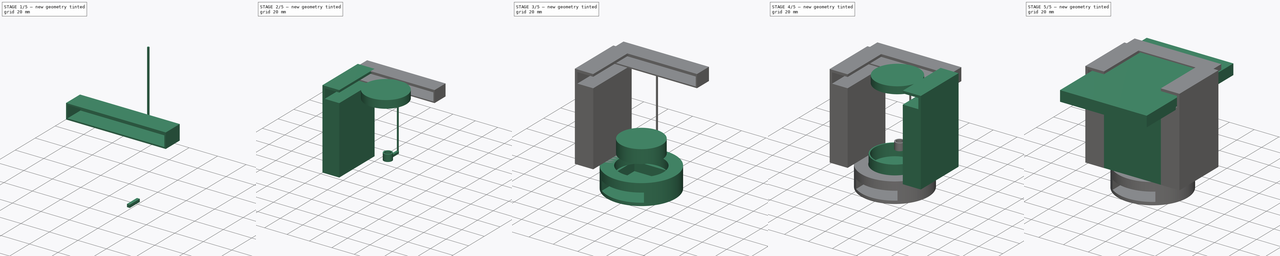
[diagram: build sequence overview — one tinted view per stage of 5, left to right]
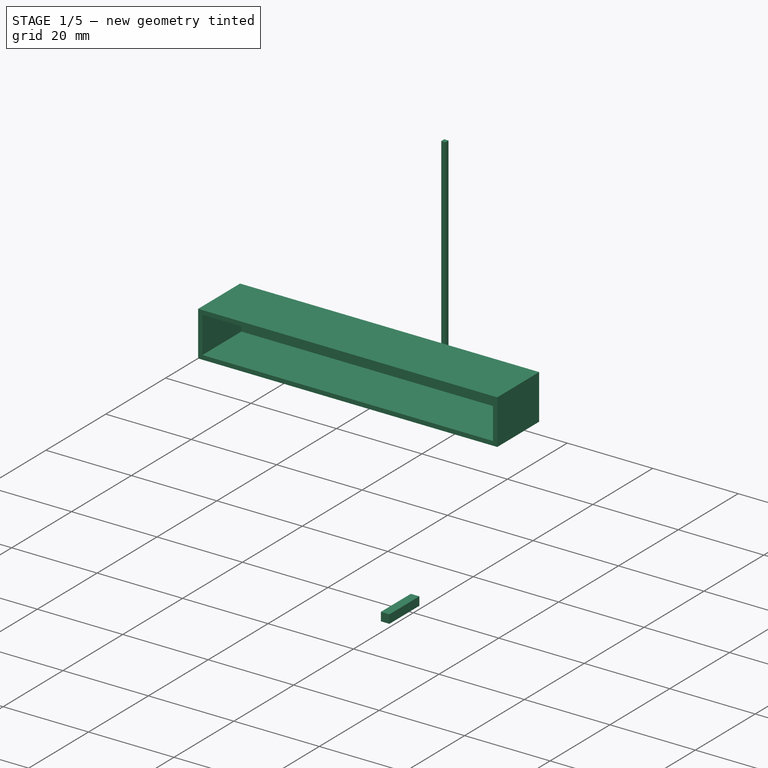
[diagram: stage 1 of 5 — iso view after this stage's code; geometry added in this stage tinted green]
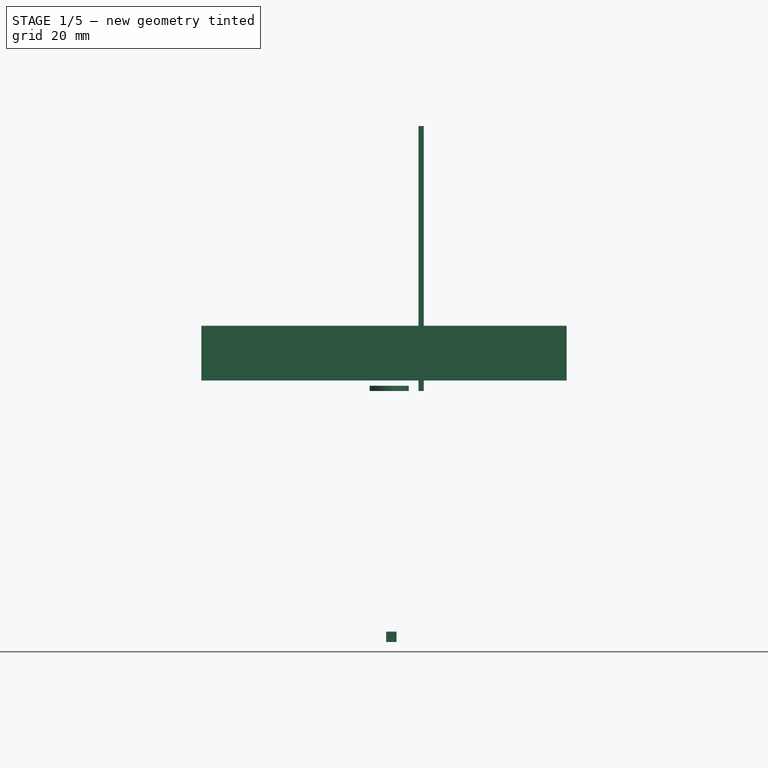
[diagram: stage 1 of 5 — front view after this stage's code; geometry added in this stage tinted green]
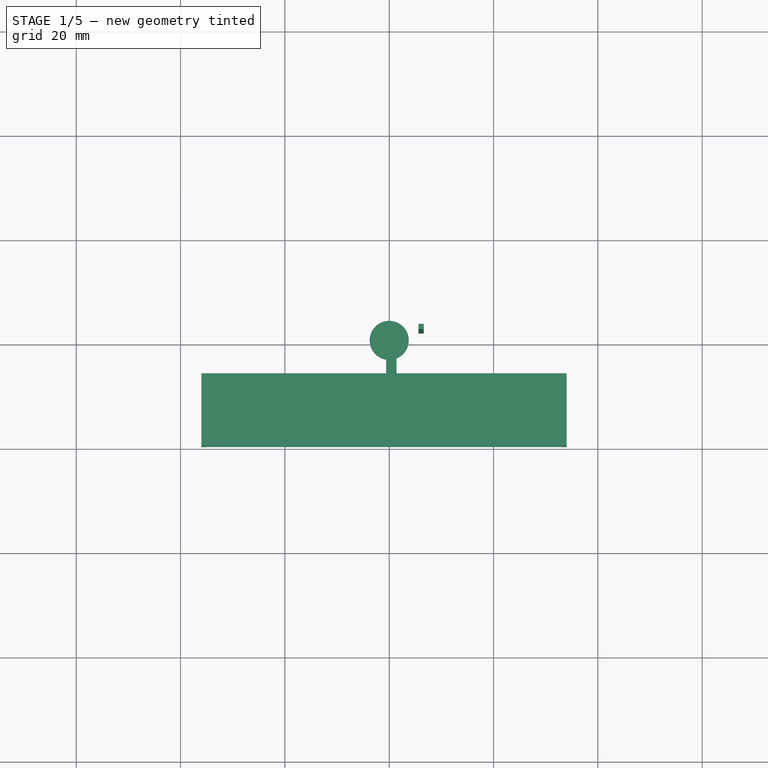
[diagram: stage 1 of 5 — top view after this stage's code; geometry added in this stage tinted green]
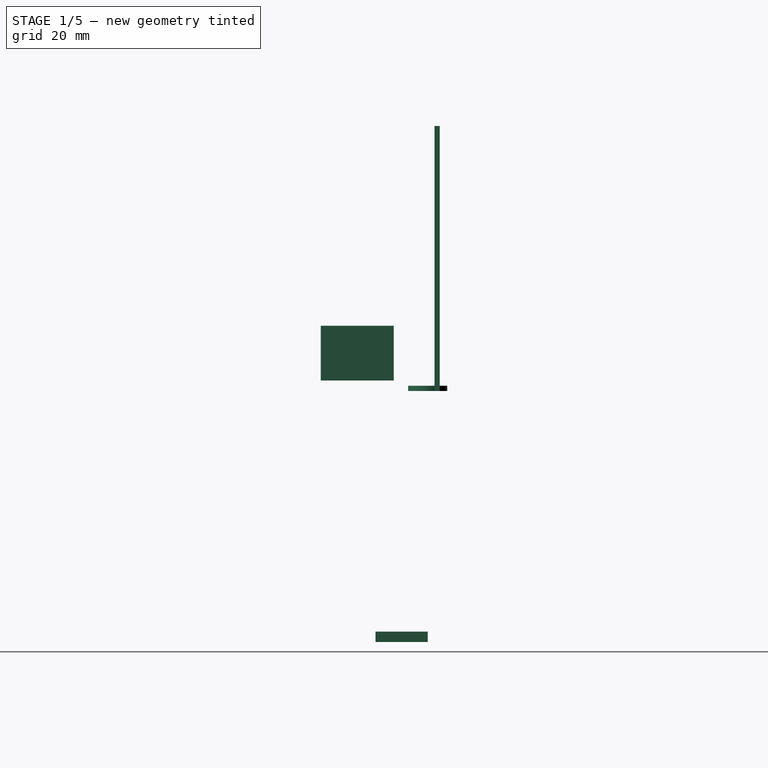
[diagram: stage 1 of 5 — right view after this stage's code; geometry added in this stage tinted green]
FCSTD DOCUMENT  (FreeCAD 0.20R29410 (Git))
Label: teg-visc3
License: All rights reserved
LicenseURL: http://en.wikipedia.org/wiki/All_rights_reserved
objects: Sketcher::SketchObject×21, PartDesign::Pad×21, PartDesign::Body×21, Part::Cut×7, Part::MultiFuse×1
note: 92 computed .brp shape members not serialized (recipe doc carries the construction recipe); baked Part::Feature solids carry a one-line shape summary decoded from their .brp

FEATURE [Sketcher::SketchObject] Sketch001
  FullyConstrained = false
  MapMode = 5
  Support = -> [XY_Plane001]
  sketch-geometry (4):
    g0: LineSegment StartX=-37 StartY=7 StartZ=0 EndX=33 EndY=7 EndZ=0
    g1: LineSegment StartX=33 StartY=7 StartZ=0 EndX=33 EndY=-7 EndZ=0
    g2: LineSegment StartX=33 StartY=-7 StartZ=0 EndX=-37 EndY=-7 EndZ=0
    g3: LineSegment StartX=-37 StartY=-7 StartZ=0 EndX=-37 EndY=7 EndZ=0
  constraints (12):
    c: Coincident(g0,g1)
    c: Coincident(g1,g2)
    c: Coincident(g2,g3)
    c: Coincident(g3,g0)
    c: Horizontal(g0)
    c: Horizontal(g2)
    c: Vertical(g1)
    c: Vertical(g3)
    c: DistanceX(g0,g0) = 70
    c: DistanceY(g1,g1) = 14
    c: DistanceX(g0,g-1) = 37
    c: DistanceY(g-1,g0) = 7
FEATURE [PartDesign::Pad] Pad001
  AllowMultiFace = false
  Direction = (1,1,1)
  Length = 10.5
  Length2 = 100
  Profile = -> Sketch001
  Type = 0
FEATURE [PartDesign::Body] Body029
  Group = -> [Sketch028,Pad026]
  Origin = -> Origin029
  Placement = pos=(-1,-21.5,2) rot=(0,0,1;0rad)
  Tip = -> Pad026
FEATURE [Sketcher::SketchObject] Sketch029
  FullyConstrained = false
  MapMode = 5
  Support = -> [XY_Plane030]
  sketch-geometry (4):
    g0: LineSegment StartX=-35 StartY=6 StartZ=0 EndX=33 EndY=6 EndZ=0
    g1: LineSegment StartX=33 StartY=6 StartZ=0 EndX=33 EndY=-7 EndZ=0
    g2: LineSegment StartX=33 StartY=-7 StartZ=0 EndX=-35 EndY=-7 EndZ=0
    g3: LineSegment StartX=-35 StartY=-7 StartZ=0 EndX=-35 EndY=6 EndZ=0
  constraints (12):
    c: Coincident(g0,g1)
    c: Coincident(g1,g2)
    c: Coincident(g2,g3)
    c: Coincident(g3,g0)
    c: Horizontal(g0)
    c: Horizontal(g2)
    c: Vertical(g1)
    c: Vertical(g3)
    c: DistanceX(g0,g0) = 68
    c: DistanceY(g1,g1) = 13
    c: DistanceX(g0,g-1) = 35
    c: DistanceY(g-1,g0) = 6
FEATURE [PartDesign::Pad] Pad027
  AllowMultiFace = false
  Direction = (1,1,1)
  Length = 8.5
  Length2 = 100
  Profile = -> Sketch029
  Type = 0
FEATURE [PartDesign::Body] Body035
  Group = -> [Sketch034,Pad032]
  Origin = -> Origin035
  Placement = pos=(-1,-30,-48.5) rot=(0,0,1;0rad)
  Tip = -> Pad032
FEATURE [Sketcher::SketchObject] Sketch035
  FullyConstrained = false
  MapMode = 5
  Support = -> [XY_Plane036]
  sketch-geometry (4):
    g0: LineSegment StartX=4.89394 StartY=2.58442 StartZ=0 EndX=6.89394 EndY=2.58442 EndZ=0
    g1: LineSegment StartX=6.89394 StartY=2.58442 StartZ=0 EndX=6.89394 EndY=0.584416 EndZ=0
    g2: LineSegment StartX=6.89394 StartY=0.584416 StartZ=0 EndX=4.89394 EndY=0.584416 EndZ=0
    g3: LineSegment StartX=4.89394 StartY=0.584416 StartZ=0 EndX=4.89394 EndY=2.58442 EndZ=0
  constraints (10):
    c: Coincident(g0,g1)
    c: Coincident(g1,g2)
    c: Coincident(g2,g3)
    c: Coincident(g3,g0)
    c: Horizontal(g0)
    c: Horizontal(g2)
    c: Vertical(g1)
    c: Vertical(g3)
    c: DistanceY(g1,g1) = 2
    c: DistanceX(g2,g2) = 2
FEATURE [PartDesign::Pad] Pad033
  AllowMultiFace = false
  Direction = (1,1,1)
  Length = 50.8
  Length2 = 100
  Profile = -> Sketch035
  Type = 0
FEATURE [PartDesign::Body] Body036
  Group = -> [Sketch035,Pad033]
  Origin = -> Origin036
  Placement = pos=(-7.2,-19,-49) rot=(0,0,1;0rad)
  Tip = -> Pad033
FEATURE [Sketcher::SketchObject] Sketch036
  FullyConstrained = false
  MapMode = 5
  Placement = pos=(0,0,0) rot=(1,0,0;1.5708rad)
  Support = -> [XZ_Plane037]
  sketch-geometry (4):
    g0: LineSegment StartX=-0.595553 StartY=-46.1395 StartZ=0 EndX=1.40445 EndY=-46.1395 EndZ=0
    g1: LineSegment StartX=1.40445 StartY=-46.1395 StartZ=0 EndX=1.40445 EndY=-48.1395 EndZ=0
    g2: LineSegment StartX=1.40445 StartY=-48.1395 StartZ=0 EndX=-0.595553 EndY=-48.1395 EndZ=0
    g3: LineSegment StartX=-0.595553 StartY=-48.1395 StartZ=0 EndX=-0.595553 EndY=-46.1395 EndZ=0
  constraints (10):
    c: Coincident(g0,g1)
    c: Coincident(g1,g2)
    c: Coincident(g2,g3)
    c: Coincident(g3,g0)
    c: Horizontal(g0)
    c: Horizontal(g2)
    c: Vertical(g1)
    c: Vertical(g3)
    c: DistanceY(g1,g1) = 2
    c: DistanceX(g0,g0) = 2
FEATURE [PartDesign::Pad] Pad034
  AllowMultiFace = false
  Direction = (0,-1,-2e-16)
  Length = 10
  Length2 = 100
  Placement = pos=(0,0,0) rot=(1,0,0;1.5708rad)
  Profile = -> Sketch036
  Type = 0
FEATURE [PartDesign::Body] Body037
  Group = -> [Sketch036,Pad034]
  Origin = -> Origin037
  Placement = pos=(-1.5,-17.2,-1) rot=(0,0,1;0rad)
  Tip = -> Pad034
FEATURE [Sketcher::SketchObject] Sketch037
  FullyConstrained = false
  MapMode = 5
  Support = -> [XY_Plane038]
  sketch-geometry (1):
    g0: Circle CenterX=0 CenterY=0 CenterZ=0 NormalX=0 NormalY=0 NormalZ=1 AngleXU=0 Radius=3.75
  constraints (1):
    c: Radius(g0) = 3.75
FEATURE [PartDesign::Pad] Pad035
  AllowMultiFace = false
  Direction = (1,1,1)
  Length = 1
  Length2 = 100
  Profile = -> Sketch037
  Type = 0
FEATURE [PartDesign::Body] Body038
  Group = -> [Sketch037,Pad035]
  Origin = -> Origin038
  Placement = pos=(-1,-30,-49.5) rot=(0,0,1;0rad)
  Tip = -> Pad035
FEATURE [Part::Cut] Cut036
  Base = -> Body001
  Placement = pos=(0,-5,1) rot=(0,0,1;0rad)
  Tool = -> Body030
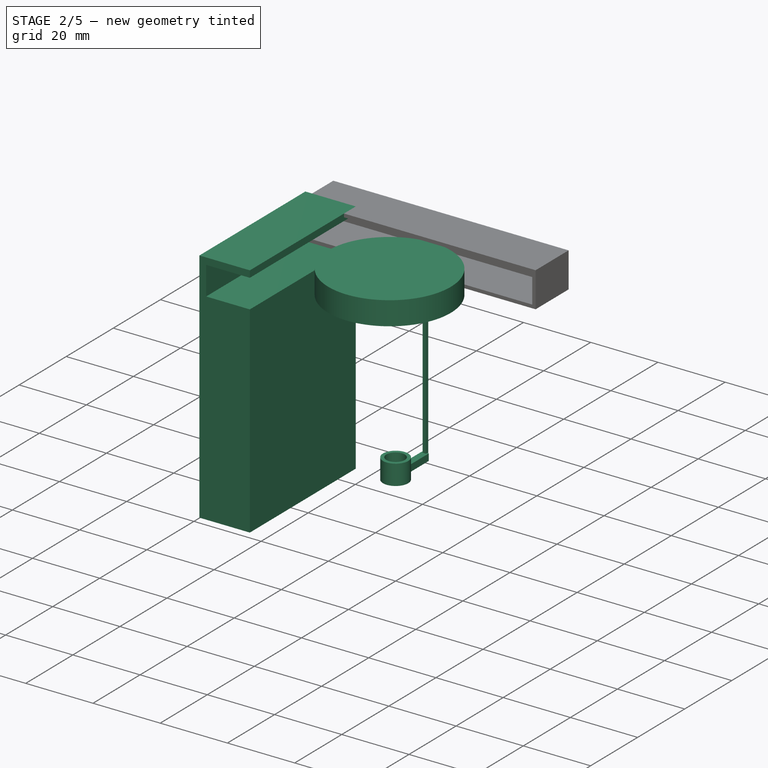
[diagram: stage 2 of 5 — iso view after this stage's code; geometry added in this stage tinted green]
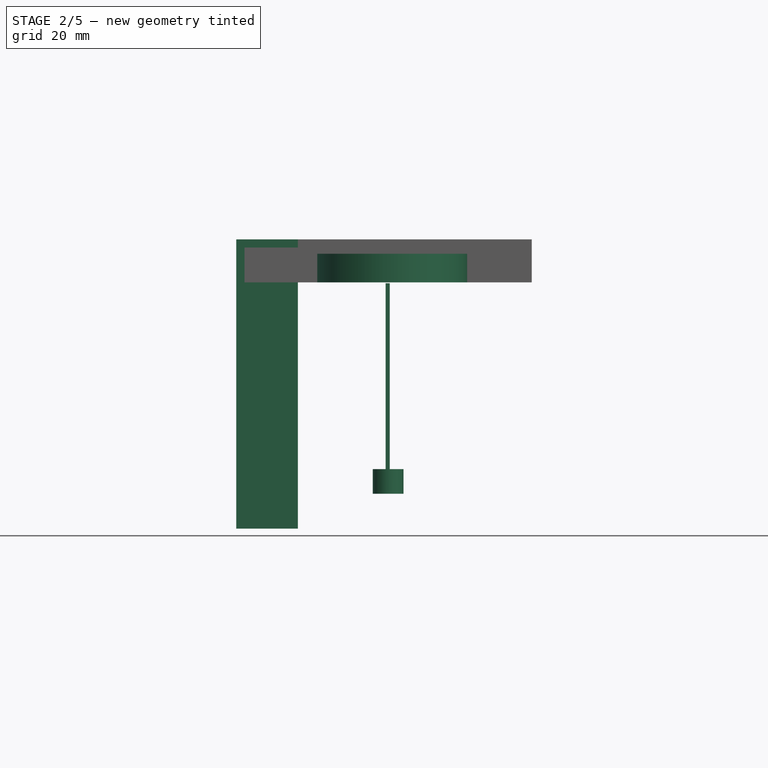
[diagram: stage 2 of 5 — front view after this stage's code; geometry added in this stage tinted green]
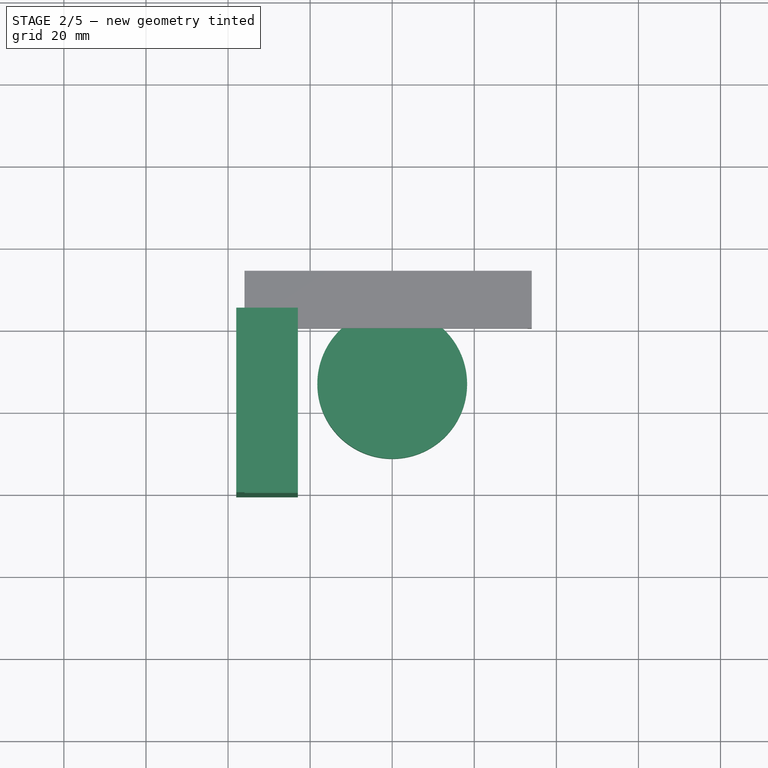
[diagram: stage 2 of 5 — top view after this stage's code; geometry added in this stage tinted green]
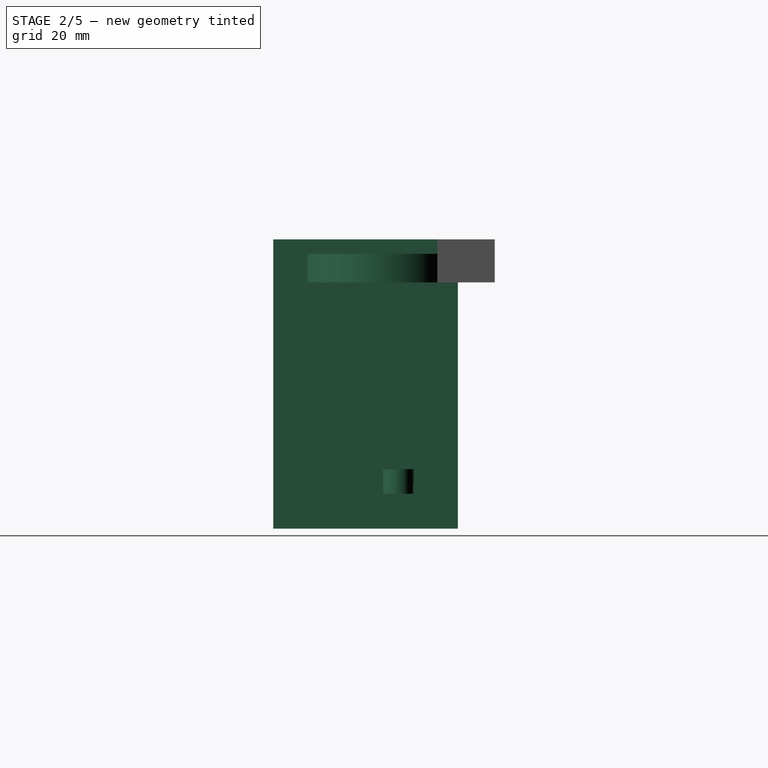
[diagram: stage 2 of 5 — right view after this stage's code; geometry added in this stage tinted green]
FEATURE [PartDesign::Body] Body015
  Group = -> [Sketch016,Pad014]
  Origin = -> Origin015
  Placement = pos=(0,-3,-75) rot=(0,0,1;0rad)
  Tip = -> Pad014
FEATURE [Sketcher::SketchObject] Sketch017
  AttachmentOffset = pos=(0,0,2) rot=(0,0,1;0rad)
  FullyConstrained = false
  Placement = pos=(0,0,2) rot=(0,0,1;0rad)
  Support = -> [XY_Plane016]
  sketch-geometry (1):
    g0: Circle CenterX=0 CenterY=-34 CenterZ=0 NormalX=0 NormalY=0 NormalZ=1 AngleXU=0 Radius=18.25
  constraints (3):
    c: Radius(g0) = 18.25
    c: DistanceX(g-1,g0) = 0
    c: DistanceY(g0,g-1) = 34
FEATURE [PartDesign::Pad] Pad015
  AllowMultiFace = false
  Direction = (1,1,1)
  Length = 7
  Length2 = 100
  Profile = -> Sketch017
  Type = 0
FEATURE [PartDesign::Body] Body026
  Group = -> [Sketch025,Pad023]
  Origin = -> Origin026
  Placement = pos=(0,-42,-72.5) rot=(0,0,1;0rad)
  Tip = -> Pad023
FEATURE [Sketcher::SketchObject] Sketch028
  FullyConstrained = false
  MapMode = 5
  Support = -> [XY_Plane029]
  sketch-geometry (4):
    g0: LineSegment StartX=-35 StartY=6 StartZ=0 EndX=-22 EndY=6 EndZ=0
    g1: LineSegment StartX=-22 StartY=6 StartZ=0 EndX=-22 EndY=-39 EndZ=0
    g2: LineSegment StartX=-22 StartY=-39 StartZ=0 EndX=-35 EndY=-39 EndZ=0
    g3: LineSegment StartX=-35 StartY=-39 StartZ=0 EndX=-35 EndY=6 EndZ=0
  constraints (12):
    c: Coincident(g0,g1)
    c: Coincident(g1,g2)
    c: Coincident(g2,g3)
    c: Coincident(g3,g0)
    c: Horizontal(g0)
    c: Horizontal(g2)
    c: Vertical(g1)
    c: Vertical(g3)
    c: DistanceX(g0,g0) = 13
    c: DistanceY(g1,g1) = 45
    c: DistanceX(g0,g-1) = 35
    c: DistanceY(g-1,g0) = 6
FEATURE [PartDesign::Pad] Pad026
  AllowMultiFace = false
  Direction = (1,1,1)
  Length = 8.5
  Length2 = 100
  Profile = -> Sketch028
  Type = 0
FEATURE [PartDesign::Body] Body030
  Group = -> [Sketch029,Pad027]
  Origin = -> Origin030
  Placement = pos=(0,-8.5,2) rot=(0,0,1;0rad)
  Tip = -> Pad027
FEATURE [Sketcher::SketchObject] Sketch030
  FullyConstrained = false
  MapMode = 5
  Support = -> [XY_Plane031]
  sketch-geometry (4):
    g0: LineSegment StartX=-35 StartY=6 StartZ=0 EndX=-20 EndY=6 EndZ=0
    g1: LineSegment StartX=-20 StartY=6 StartZ=0 EndX=-20 EndY=-39 EndZ=0
    g2: LineSegment StartX=-20 StartY=-39 StartZ=0 EndX=-35 EndY=-39 EndZ=0
    g3: LineSegment StartX=-35 StartY=-39 StartZ=0 EndX=-35 EndY=6 EndZ=0
  constraints (12):
    c: Coincident(g0,g1)
    c: Coincident(g1,g2)
    c: Coincident(g2,g3)
    c: Coincident(g3,g0)
    c: Horizontal(g0)
    c: Horizontal(g2)
    c: Vertical(g1)
    c: Vertical(g3)
    c: DistanceX(g0,g0) = 15
    c: DistanceY(g1,g1) = 45
    c: DistanceX(g0,g-1) = 35
    c: DistanceY(g-1,g0) = 6
FEATURE [PartDesign::Pad] Pad028
  AllowMultiFace = false
  Direction = (1,1,1)
  Length = 70.5
  Length2 = 100
  Profile = -> Sketch030
  Type = 0
FEATURE [Sketcher::SketchObject] Sketch034
  FullyConstrained = true
  MapMode = 5
  Support = -> [XY_Plane035]
  sketch-geometry (2):
    g0: Circle CenterX=0 CenterY=0 CenterZ=0 NormalX=0 NormalY=0 NormalZ=1 AngleXU=0 Radius=2.75
    g1: Circle CenterX=0 CenterY=0 CenterZ=0 NormalX=0 NormalY=0 NormalZ=1 AngleXU=0 Radius=3.75
  constraints (6):
    c: Radius(g0) = 2.75
    c: DistanceX(g-1,g0) = 0
    c: DistanceY(g-1,g0) = 0
    c: Radius(g1) = 3.75
    c: DistanceX(g0,g1) = 0
    c: DistanceY(g0,g1) = 0
FEATURE [PartDesign::Pad] Pad032
  AllowMultiFace = false
  Direction = (0,0,1)
  Length = 5
  Length2 = 100
  Profile = -> Sketch034
  Type = 0
FEATURE [Part::Cut] Cut030
  Base = -> Body031
  Tool = -> Body029
FEATURE [Part::MultiFuse] Fusion
  Shapes = -> [Cut036,Body035,Body036,Body037,Body038]
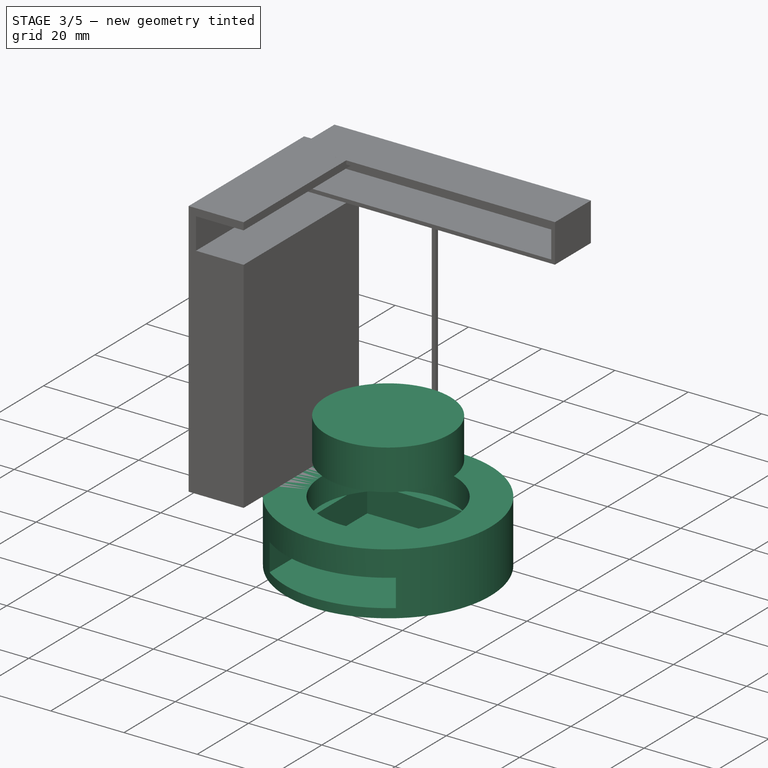
[diagram: stage 3 of 5 — iso view after this stage's code; geometry added in this stage tinted green]
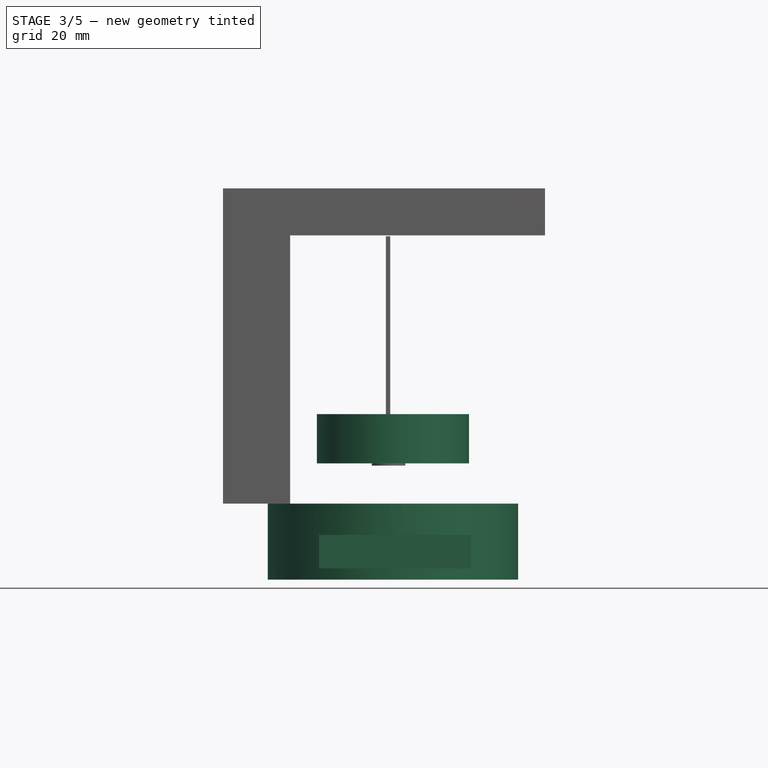
[diagram: stage 3 of 5 — front view after this stage's code; geometry added in this stage tinted green]
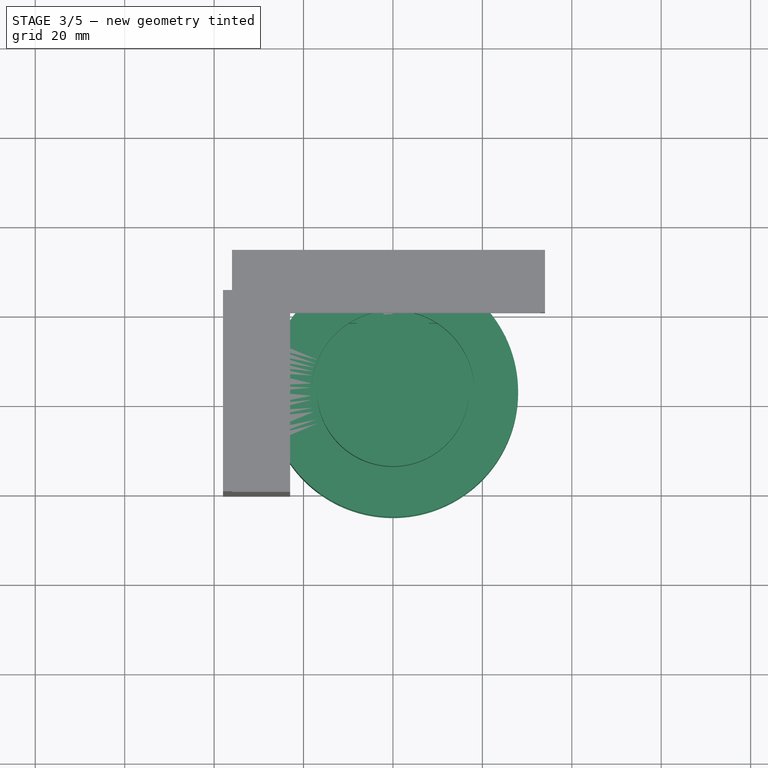
[diagram: stage 3 of 5 — top view after this stage's code; geometry added in this stage tinted green]
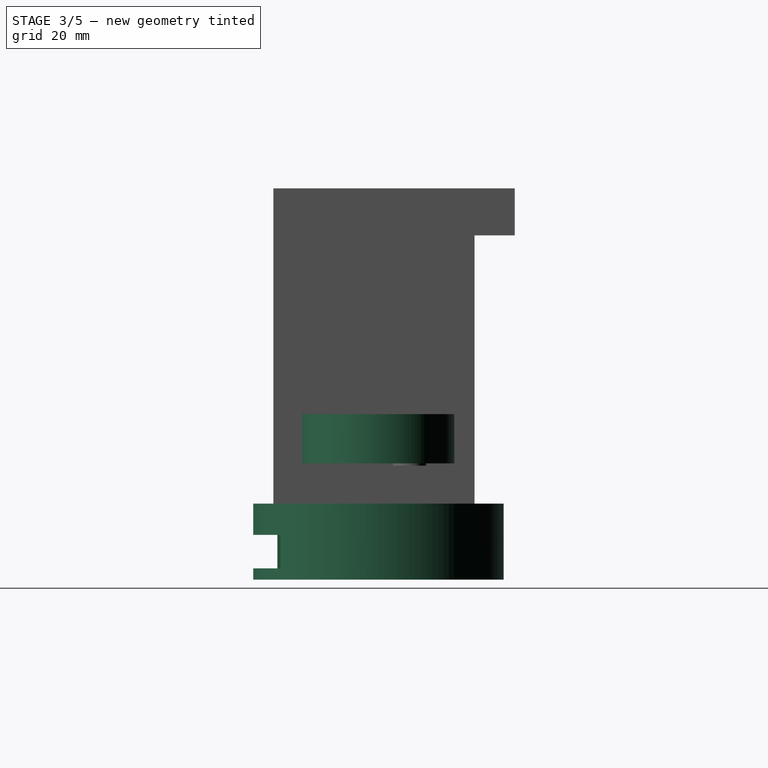
[diagram: stage 3 of 5 — right view after this stage's code; geometry added in this stage tinted green]
FEATURE [PartDesign::Body] Body004
  Group = -> [Sketch004,Pad012]
  Origin = -> Origin004
  Placement = pos=(0,-37.9,-17) rot=(0,0,1;0rad)
  Tip = -> Pad012
FEATURE [Sketcher::SketchObject] Sketch016
  FullyConstrained = false
  MapMode = 5
  Support = -> [XY_Plane015]
  sketch-geometry (1):
    g0: Circle CenterX=0 CenterY=-34 CenterZ=0 NormalX=0 NormalY=0 NormalZ=1 AngleXU=0 Radius=28
  constraints (3):
    c: Radius(g0) = 28
    c: DistanceX(g-1,g0) = 0
    c: DistanceY(g0,g-1) = 34
FEATURE [PartDesign::Pad] Pad014
  AllowMultiFace = false
  Direction = (1,1,1)
  Length = 17
  Length2 = 100
  Profile = -> Sketch016
  Type = 0
FEATURE [PartDesign::Body] Body018
  Group = -> [Sketch019,Pad017]
  Origin = -> Origin018
  Tip = -> Pad017
FEATURE [Sketcher::SketchObject] Sketch020
  FullyConstrained = false
  Placement = pos=(0,0,-49) rot=(0,0,1;0rad)
  Support = -> [XY_Plane019]
  sketch-geometry (1):
    g0: Circle CenterX=0 CenterY=-37 CenterZ=0 NormalX=0 NormalY=0 NormalZ=1 AngleXU=0 Radius=17
  constraints (3):
    c: DistanceY(g0,g-1) = 37
    c: Radius(g0) = 17
    c: DistanceX(g-1,g0) = 0
FEATURE [PartDesign::Pad] Pad018
  AllowMultiFace = false
  Direction = (1,1,1)
  Length = 11
  Length2 = 100
  Profile = -> Sketch020
  Type = 0
FEATURE [PartDesign::Body] Body019
  Group = -> [Sketch020,Pad018]
  Origin = -> Origin019
  Placement = pos=(0,0,1) rot=(0,0,1;0rad)
  Tip = -> Pad018
FEATURE [Sketcher::SketchObject] Sketch025
  FullyConstrained = false
  MapMode = 5
  Support = -> [XY_Plane026]
  sketch-geometry (4):
    g0: LineSegment StartX=-16.5504 StartY=20.4724 StartZ=0 EndX=17.4496 EndY=20.4724 EndZ=0
    g1: LineSegment StartX=17.4496 StartY=20.4724 StartZ=0 EndX=17.4496 EndY=-29.5276 EndZ=0
    g2: LineSegment StartX=17.4496 StartY=-29.5276 StartZ=0 EndX=-16.5504 EndY=-29.5276 EndZ=0
    g3: LineSegment StartX=-16.5504 StartY=-29.5276 StartZ=0 EndX=-16.5504 EndY=20.4724 EndZ=0
  constraints (10):
    c: Coincident(g0,g1)
    c: Coincident(g1,g2)
    c: Coincident(g2,g3)
    c: Coincident(g3,g0)
    c: Horizontal(g0)
    c: Horizontal(g2)
    c: Vertical(g1)
    c: Vertical(g3)
    c: DistanceX(g0,g0) = 34
    c: DistanceY(g1,g1) = 50
FEATURE [PartDesign::Pad] Pad023
  AllowMultiFace = false
  Direction = (1,1,1)
  Length = 7.5
  Length2 = 100
  Profile = -> Sketch025
  Type = 0
FEATURE [PartDesign::Body] Body033
  Group = -> [Sketch032,Pad030]
  Origin = -> Origin033
  Placement = pos=(58,-21.5,-58) rot=(0,0,1;0rad)
  Tip = -> Pad030
FEATURE [Part::Cut] Cut034
  Base = -> Body015
  Tool = -> Body016
FEATURE [Part::Cut] Cut035  label="bottom"
  Base = -> Cut034
  Tool = -> Body026
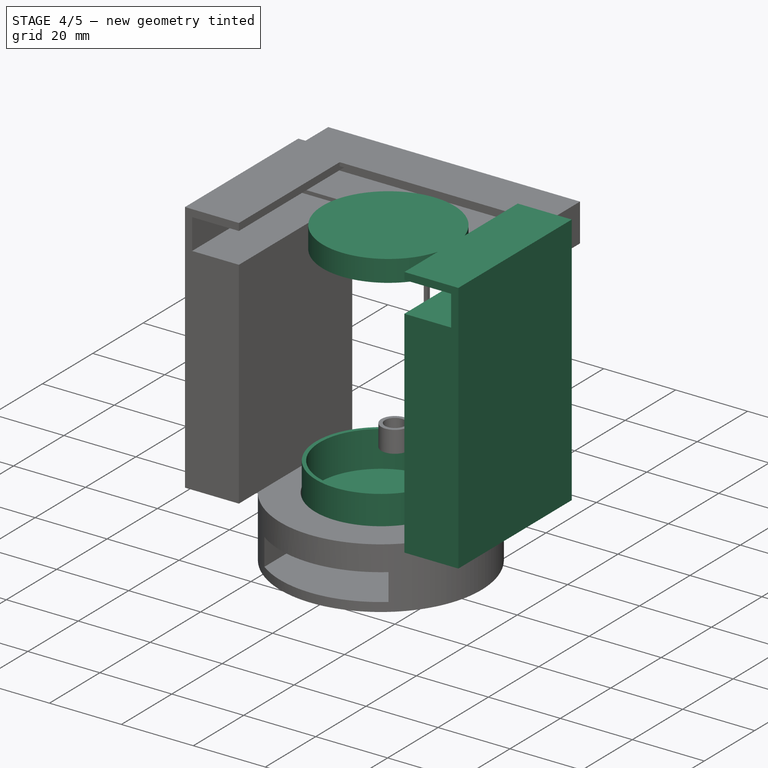
[diagram: stage 4 of 5 — iso view after this stage's code; geometry added in this stage tinted green]
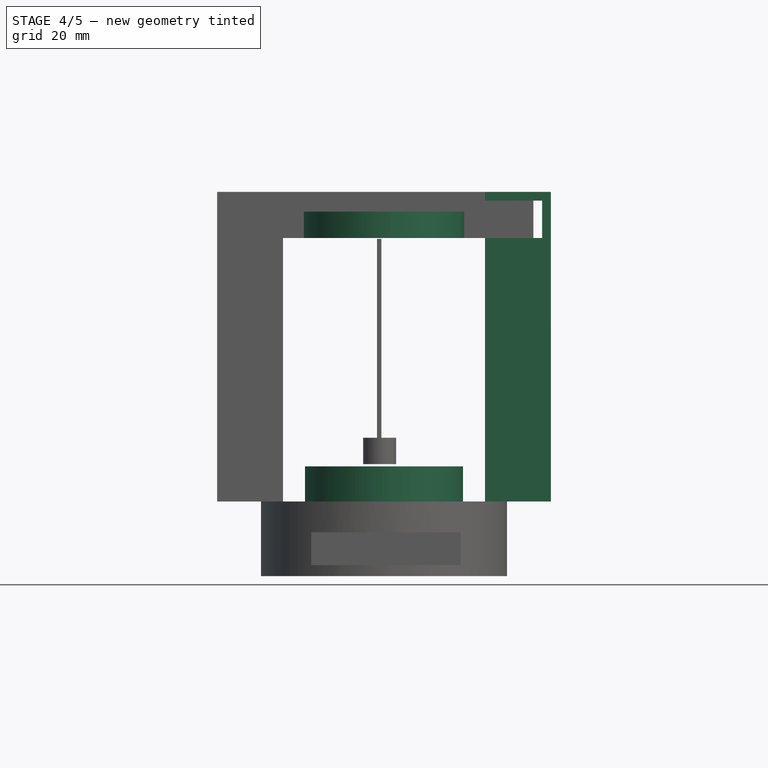
[diagram: stage 4 of 5 — front view after this stage's code; geometry added in this stage tinted green]
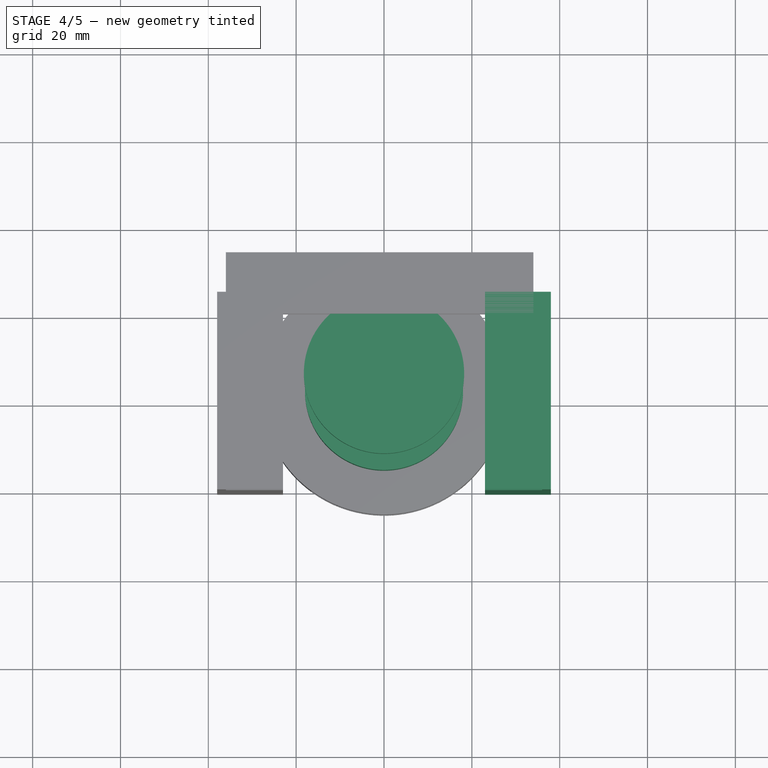
[diagram: stage 4 of 5 — top view after this stage's code; geometry added in this stage tinted green]
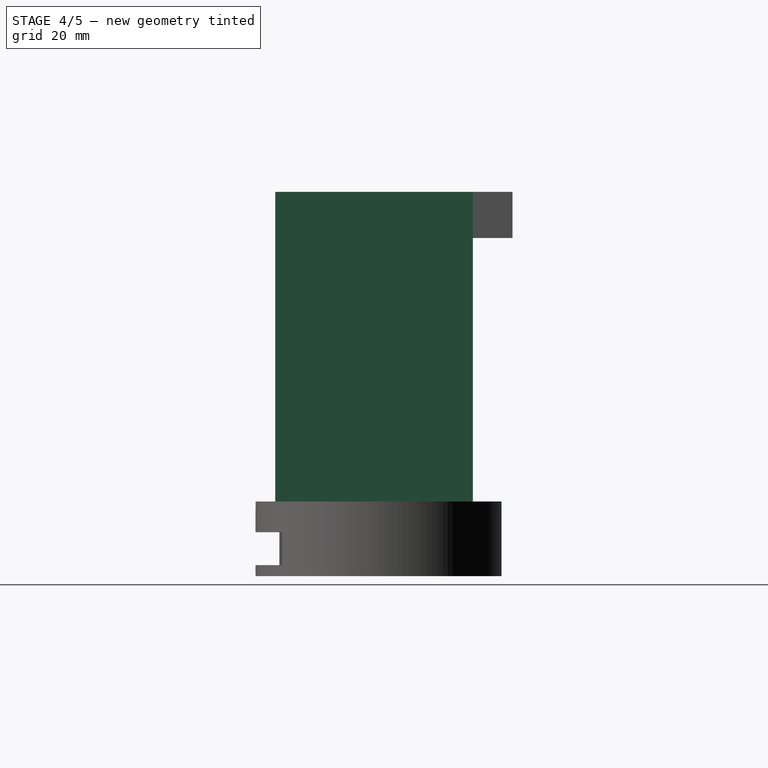
[diagram: stage 4 of 5 — right view after this stage's code; geometry added in this stage tinted green]
FEATURE [PartDesign::Body] Body016
  Group = -> [Sketch017,Pad015]
  Origin = -> Origin016
  Placement = pos=(0,-3,-67) rot=(0,0,1;0rad)
  Tip = -> Pad015
FEATURE [Sketcher::SketchObject] Sketch019
  FullyConstrained = false
  Placement = pos=(0,0,-49) rot=(0,0,1;0rad)
  Support = -> [XY_Plane018]
  sketch-geometry (1):
    g0: Circle CenterX=0 CenterY=-37 CenterZ=0 NormalX=0 NormalY=0 NormalZ=1 AngleXU=0 Radius=18
  constraints (3):
    c: DistanceY(g0,g-1) = 37
    c: Radius(g0) = 18
    c: DistanceX(g-1,g0) = 0
FEATURE [PartDesign::Pad] Pad017
  AllowMultiFace = false
  Direction = (1,1,1)
  Length = 11
  Length2 = 100
  Profile = -> Sketch019
  Type = 0
FEATURE [PartDesign::Body] Body031
  Group = -> [Sketch030,Pad028]
  Origin = -> Origin031
  Placement = pos=(-3,-21.5,-58) rot=(0,0,1;0rad)
  Tip = -> Pad028
FEATURE [Sketcher::SketchObject] Sketch031
  FullyConstrained = false
  MapMode = 5
  Support = -> [XY_Plane032]
  sketch-geometry (4):
    g0: LineSegment StartX=-35 StartY=6 StartZ=0 EndX=-22 EndY=6 EndZ=0
    g1: LineSegment StartX=-22 StartY=6 StartZ=0 EndX=-22 EndY=-39 EndZ=0
    g2: LineSegment StartX=-22 StartY=-39 StartZ=0 EndX=-35 EndY=-39 EndZ=0
    g3: LineSegment StartX=-35 StartY=-39 StartZ=0 EndX=-35 EndY=6 EndZ=0
  constraints (12):
    c: Coincident(g0,g1)
    c: Coincident(g1,g2)
    c: Coincident(g2,g3)
    c: Coincident(g3,g0)
    c: Horizontal(g0)
    c: Horizontal(g2)
    c: Vertical(g1)
    c: Vertical(g3)
    c: DistanceX(g0,g0) = 13
    c: DistanceY(g1,g1) = 45
    c: DistanceX(g0,g-1) = 35
    c: DistanceY(g-1,g0) = 6
FEATURE [PartDesign::Pad] Pad029
  AllowMultiFace = false
  Direction = (1,1,1)
  Length = 8.5
  Length2 = 100
  Profile = -> Sketch031
  Type = 0
FEATURE [PartDesign::Body] Body032
  Group = -> [Sketch031,Pad029]
  Origin = -> Origin032
  Placement = pos=(58,-21.5,2) rot=(0,0,1;0rad)
  Tip = -> Pad029
FEATURE [Sketcher::SketchObject] Sketch032
  FullyConstrained = false
  MapMode = 5
  Support = -> [XY_Plane033]
  sketch-geometry (4):
    g0: LineSegment StartX=-35 StartY=6 StartZ=0 EndX=-20 EndY=6 EndZ=0
    g1: LineSegment StartX=-20 StartY=6 StartZ=0 EndX=-20 EndY=-39 EndZ=0
    g2: LineSegment StartX=-20 StartY=-39 StartZ=0 EndX=-35 EndY=-39 EndZ=0
    g3: LineSegment StartX=-35 StartY=-39 StartZ=0 EndX=-35 EndY=6 EndZ=0
  constraints (12):
    c: Coincident(g0,g1)
    c: Coincident(g1,g2)
    c: Coincident(g2,g3)
    c: Coincident(g3,g0)
    c: Horizontal(g0)
    c: Horizontal(g2)
    c: Vertical(g1)
    c: Vertical(g3)
    c: DistanceX(g0,g0) = 15
    c: DistanceY(g1,g1) = 45
    c: DistanceX(g0,g-1) = 35
    c: DistanceY(g-1,g0) = 6
FEATURE [PartDesign::Pad] Pad030
  AllowMultiFace = false
  Direction = (1,1,1)
  Length = 70.5
  Length2 = 100
  Profile = -> Sketch032
  Type = 0
FEATURE [PartDesign::Body] Body  label="phone"
  Group = -> [Sketch,Pad]
  Origin = -> Origin
  Placement = pos=(0,-9,2) rot=(0,0,1;0rad)
  Tip = -> Pad
FEATURE [Sketcher::SketchObject] Sketch015
  AttachmentOffset = pos=(0,0,2) rot=(0,0,1;0rad)
  FullyConstrained = true
  Placement = pos=(0,0,2) rot=(0,0,1;0rad)
  Support = -> [XY_Plane014]
  sketch-geometry (1):
    g0: Circle CenterX=0 CenterY=-34 CenterZ=0 NormalX=0 NormalY=0 NormalZ=1 AngleXU=0 Radius=18.25
  constraints (3):
    c: Radius(g0) = 18.25
    c: DistanceX(g-1,g0) = 0
    c: DistanceY(g0,g-1) = 34
FEATURE [PartDesign::Pad] Pad013
  AllowMultiFace = false
  Direction = (0,0,1)
  Length = 6
  Length2 = 100
  Profile = -> Sketch015
  Type = 0
FEATURE [PartDesign::Body] Body014
  Group = -> [Sketch015,Pad013]
  Origin = -> Origin014
  Placement = pos=(0,-3,-64) rot=(0,0,1;0rad)
  Tip = -> Pad013
FEATURE [Part::Cut] Cut031
  Base = -> Body033
  Tool = -> Body032
FEATURE [Part::Cut] Cut012  label="petri"
  Base = -> Body018
  Placement = pos=(0,0,-12) rot=(0,0,1;0rad)
  Tool = -> Body019
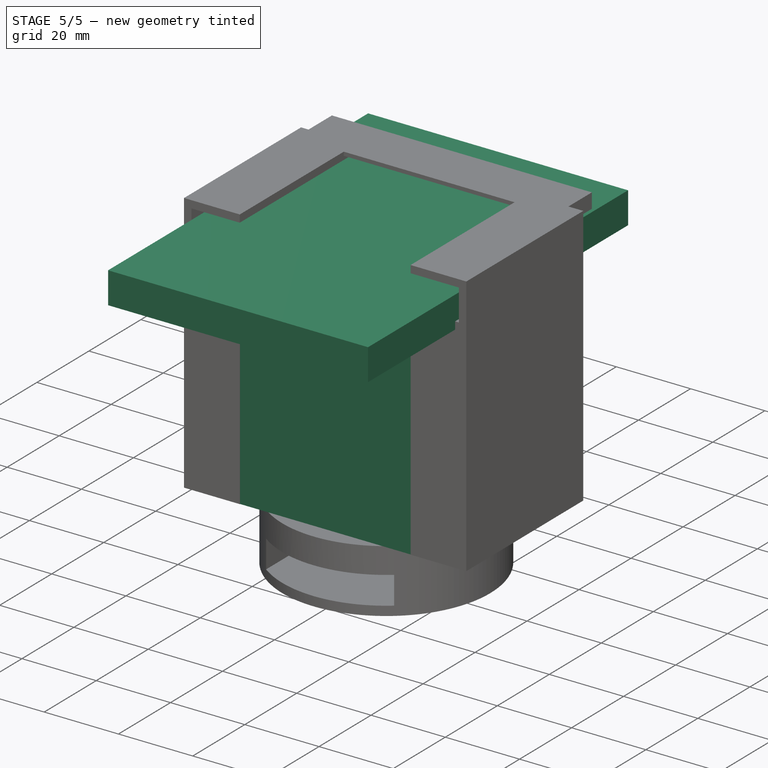
[diagram: stage 5 of 5 — iso view after this stage's code; geometry added in this stage tinted green]
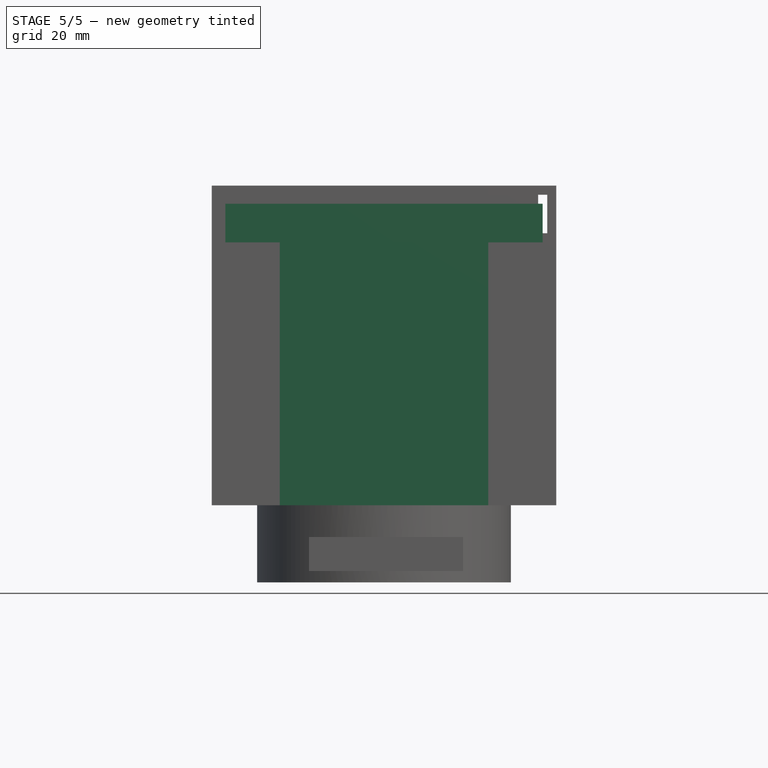
[diagram: stage 5 of 5 — front view after this stage's code; geometry added in this stage tinted green]
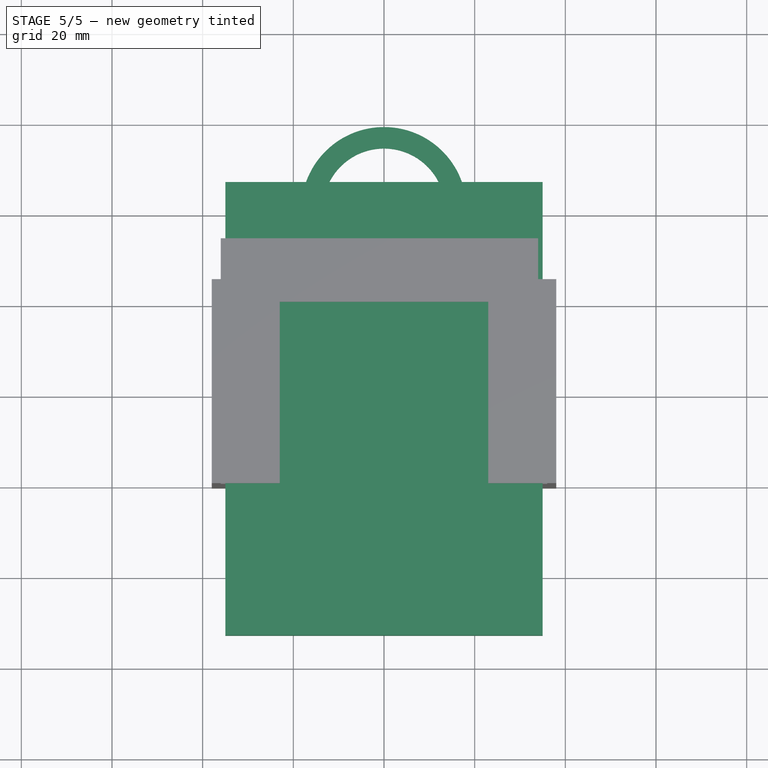
[diagram: stage 5 of 5 — top view after this stage's code; geometry added in this stage tinted green]
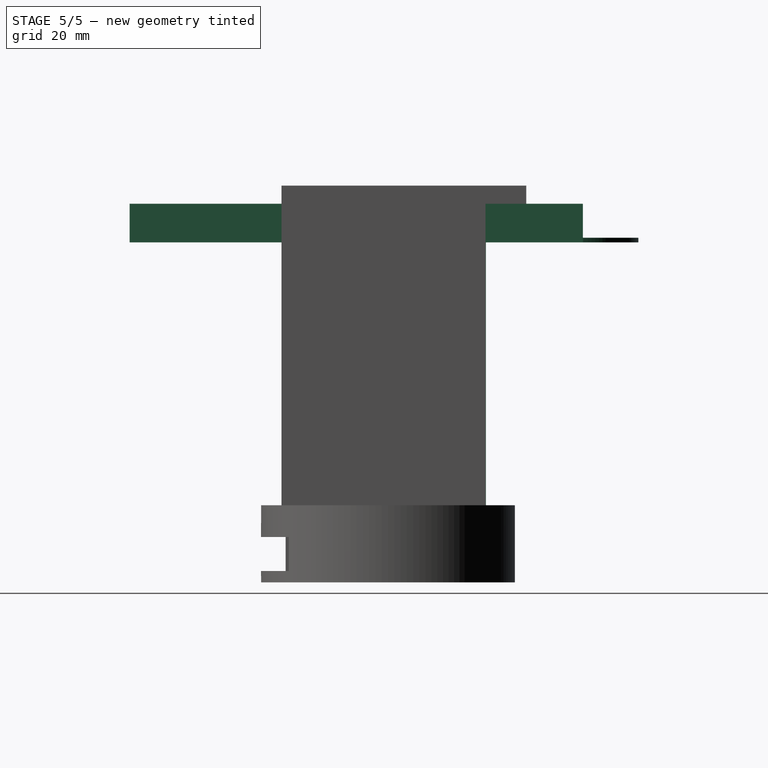
[diagram: stage 5 of 5 — right view after this stage's code; geometry added in this stage tinted green]
FEATURE [PartDesign::Body] Body001
  Group = -> [Sketch001,Pad001]
  Origin = -> Origin001
  Placement = pos=(1,-8.5,1) rot=(0,0,1;0rad)
  Tip = -> Pad001
FEATURE [Sketcher::SketchObject] Sketch003
  FullyConstrained = false
  Placement = pos=(0,0,-40) rot=(0,0,1;0rad)
  Support = -> [XY_Plane003]
  sketch-geometry (4):
    g0: LineSegment StartX=-25 StartY=22.5 StartZ=0 EndX=25 EndY=22.5 EndZ=0
    g1: LineSegment StartX=25 StartY=22.5 StartZ=0 EndX=25 EndY=-22.5 EndZ=0
    g2: LineSegment StartX=25 StartY=-22.5 StartZ=0 EndX=-25 EndY=-22.5 EndZ=0
    g3: LineSegment StartX=-25 StartY=-22.5 StartZ=0 EndX=-25 EndY=22.5 EndZ=0
  constraints (12):
    c: Coincident(g0,g1)
    c: Coincident(g1,g2)
    c: Coincident(g2,g3)
    c: Coincident(g3,g0)
    c: Horizontal(g0)
    c: Horizontal(g2)
    c: Vertical(g1)
    c: Vertical(g3)
    c: DistanceX(g2,g2) = 50
    c: DistanceY(g1,g1) = 45
    c: DistanceX(g2,g-1) = 25
    c: DistanceY(g1,g-1) = 22.5
FEATURE [Sketcher::SketchObject] Sketch004
  FullyConstrained = false
  Placement = pos=(0,0,-39) rot=(0,0,1;0rad)
  Support = -> [XY_Plane004]
  sketch-geometry (4):
    g0: LineSegment StartX=-24 StartY=21.5 StartZ=0 EndX=24 EndY=21.5 EndZ=0
    g1: LineSegment StartX=24 StartY=21.5 StartZ=0 EndX=24 EndY=-21.5 EndZ=0
    g2: LineSegment StartX=24 StartY=-21.5 StartZ=0 EndX=-24 EndY=-21.5 EndZ=0
    g3: LineSegment StartX=-24 StartY=-21.5 StartZ=0 EndX=-24 EndY=21.5 EndZ=0
  constraints (12):
    c: Coincident(g0,g1)
    c: Coincident(g1,g2)
    c: Coincident(g2,g3)
    c: Coincident(g3,g0)
    c: Horizontal(g0)
    c: Horizontal(g2)
    c: Vertical(g1)
    c: Vertical(g3)
    c: DistanceX(g0,g0) = 48
    c: DistanceY(g3,g3) = 43
    c: DistanceX(g0,g-1) = 24
    c: DistanceY(g-1,g0) = 21.5
FEATURE [PartDesign::Pad] Pad011
  AllowMultiFace = false
  Direction = (1,1,1)
  Length = 60
  Length2 = 100
  Profile = -> Sketch003
  Type = 0
FEATURE [PartDesign::Body] Body003
  Group = -> [Sketch003,Pad011]
  Origin = -> Origin003
  Placement = pos=(0,-37.9,-18) rot=(0,0,1;0rad)
  Tip = -> Pad011
FEATURE [PartDesign::Pad] Pad012
  AllowMultiFace = false
  Direction = (1,1,1)
  Length = 60
  Length2 = 100
  Profile = -> Sketch004
  Type = 0
FEATURE [Part::Cut] Cut
  Base = -> Body003
  Tool = -> Body004
FEATURE [Sketcher::SketchObject] Sketch026
  FullyConstrained = false
  MapMode = 5
  Support = -> [XY_Plane027]
  sketch-geometry (4):
    g0: LineSegment StartX=-12.6087 StartY=-27.5367 StartZ=0 EndX=20.3913 EndY=-27.5367 EndZ=0
    g1: LineSegment StartX=20.3913 StartY=-27.5367 StartZ=0 EndX=20.3913 EndY=-62.5367 EndZ=0
    g2: LineSegment StartX=20.3913 StartY=-62.5367 StartZ=0 EndX=-12.6087 EndY=-62.5367 EndZ=0
    g3: LineSegment StartX=-12.6087 StartY=-62.5367 StartZ=0 EndX=-12.6087 EndY=-27.5367 EndZ=0
  constraints (10):
    c: Coincident(g0,g1)
    c: Coincident(g1,g2)
    c: Coincident(g2,g3)
    c: Coincident(g3,g0)
    c: Horizontal(g0)
    c: Horizontal(g2)
    c: Vertical(g1)
    c: Vertical(g3)
    c: DistanceX(g0,g0) = 33
    c: DistanceY(g1,g1) = 35
FEATURE [PartDesign::Pad] Pad024
  AllowMultiFace = false
  Direction = (0,0,1)
  Length = 6
  Length2 = 100
  Profile = -> Sketch026
  Type = 0
FEATURE [PartDesign::Body] Body027  label="peltier"
  Group = -> [Sketch026,Pad024]
  Origin = -> Origin027
  Placement = pos=(-4,6,-62) rot=(0,0,1;0rad)
  Tip = -> Pad024
FEATURE [Sketcher::SketchObject] Sketch033
  FullyConstrained = true
  MapMode = 5
  Support = -> [XY_Plane034]
  sketch-geometry (2):
    g0: Circle CenterX=0 CenterY=0 CenterZ=0 NormalX=0 NormalY=0 NormalZ=1 AngleXU=0 Radius=13.5
    g1: Circle CenterX=0 CenterY=0 CenterZ=0 NormalX=0 NormalY=0 NormalZ=1 AngleXU=0 Radius=18.25
  constraints (6):
    c: Radius(g1) = 18.25
    c: Radius(g0) = 13.5
    c: DistanceX(g-1,g0) = 0
    c: DistanceX(g-1,g1) = 0
    c: DistanceY(g0,g-1) = 0
    c: DistanceY(g1,g0) = 0
FEATURE [PartDesign::Pad] Pad031
  AllowMultiFace = false
  Direction = (0,0,1)
  Length = 1
  Length2 = 100
  Profile = -> Sketch033
  Type = 0
FEATURE [PartDesign::Body] Body034  label="petri-holder"
  Group = -> [Sketch033,Pad031]
  Origin = -> Origin034
  Placement = pos=(0,-37,-65) rot=(0,0,1;0rad)
  Tip = -> Pad031
FEATURE [Sketcher::SketchObject] Sketch
  FullyConstrained = true
  MapMode = 5
  Support = -> [XY_Plane]
  sketch-geometry (4):
    g0: LineSegment StartX=-35 StartY=6 StartZ=0 EndX=35 EndY=6 EndZ=0
    g1: LineSegment StartX=35 StartY=6 StartZ=0 EndX=35 EndY=-94 EndZ=0
    g2: LineSegment StartX=35 StartY=-94 StartZ=0 EndX=-35 EndY=-94 EndZ=0
    g3: LineSegment StartX=-35 StartY=-94 StartZ=0 EndX=-35 EndY=6 EndZ=0
  constraints (12):
    c: Coincident(g0,g1)
    c: Coincident(g1,g2)
    c: Coincident(g2,g3)
    c: Coincident(g3,g0)
    c: Horizontal(g0)
    c: Horizontal(g2)
    c: Vertical(g1)
    c: Vertical(g3)
    c: DistanceX(g0,g0) = 70
    c: DistanceY(g1,g1) = 100
    c: DistanceX(g0,g-1) = 35
    c: DistanceY(g-1,g0) = 6
FEATURE [PartDesign::Pad] Pad
  AllowMultiFace = false
  Direction = (0,0,1)
  Length = 8.5
  Length2 = 100
  Profile = -> Sketch
  Type = 0
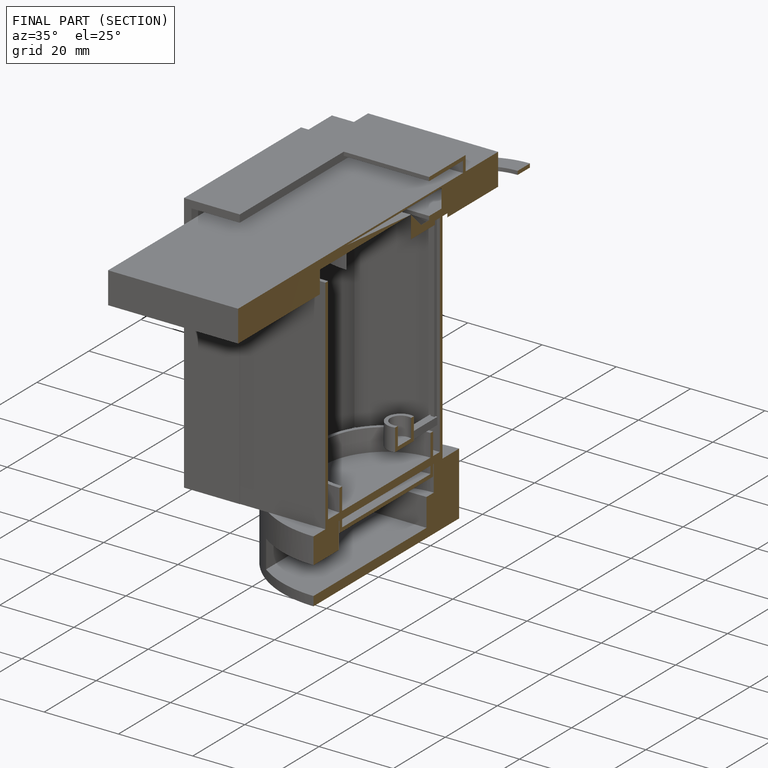
[diagram: finished part — half-section view (interior)]
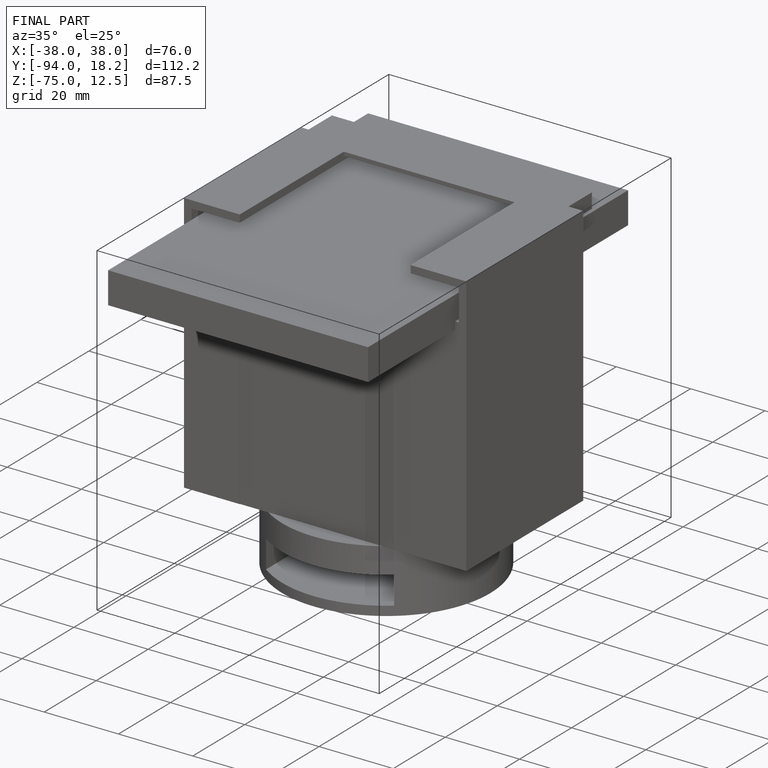
[diagram: finished part — iso view with bounding-box wireframe]
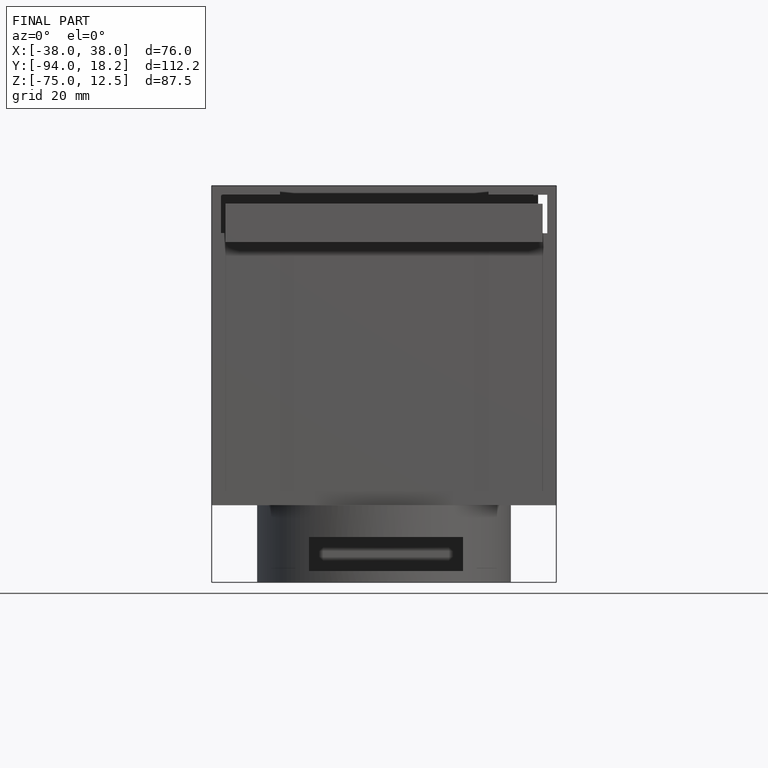
[diagram: finished part — front view with bounding-box wireframe]
